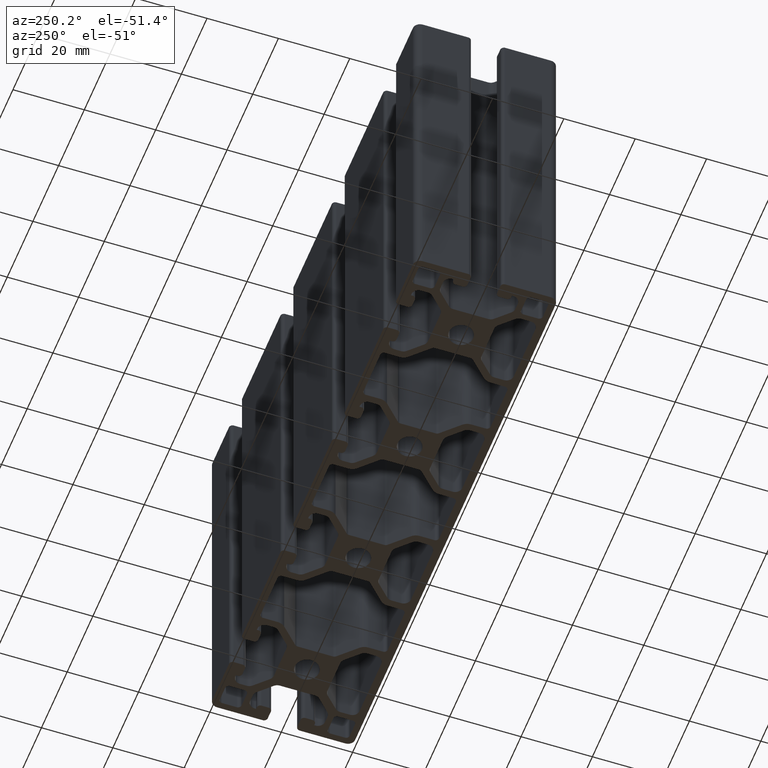
[diagram: clean part render]
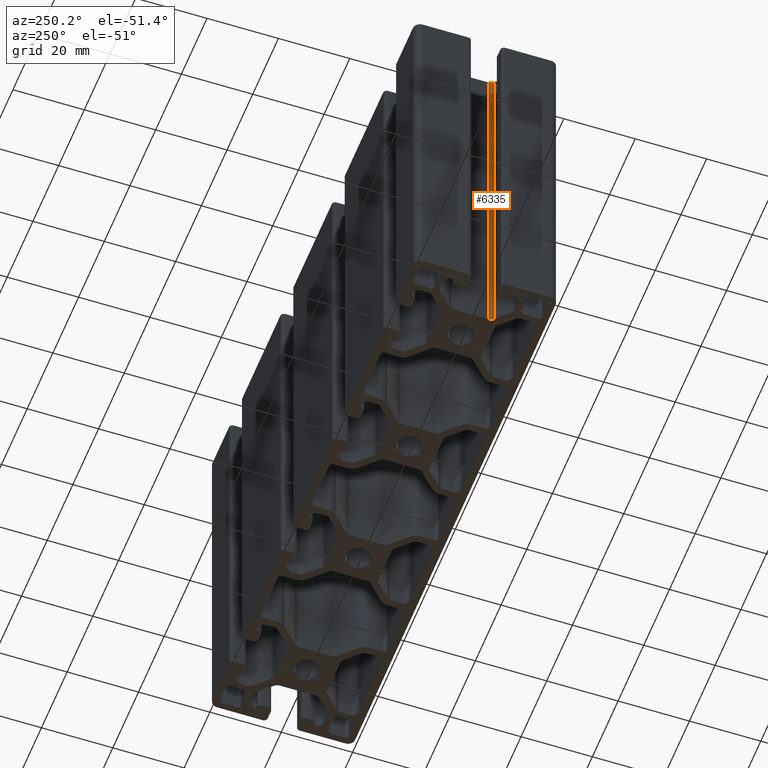
[diagram: same view with one face highlighted and labeled with its STEP entity id]
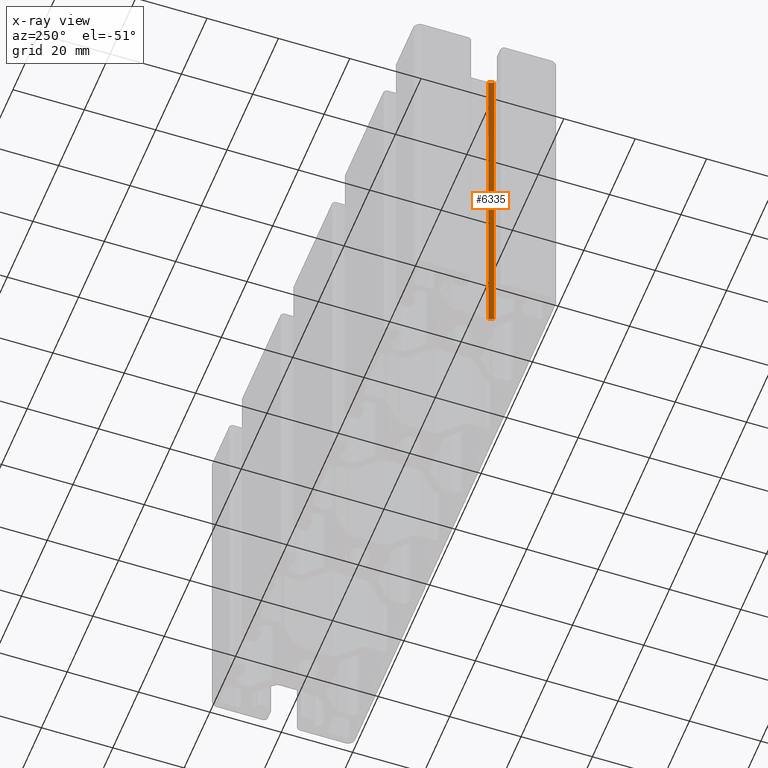
[diagram: x-ray of the same camera — body ghosted, the highlighted face saturated]
A machine part, auxiliary view. The second image highlights one B-rep face of the part: STEP entity #6335.
The next image is the same camera in x-ray: the body ghosted, the highlighted face saturated — about 0% of this face is hidden behind the body in this view.
In plain terms, the highlighted cylindrical surface (edge-blend (fillet) strip) has radius 2 mm, axis along (0, 0, 1).
Its self-contained STEP definition (entity closure, byte-faithful):
#393=FACE_OUTER_BOUND('',#719,.T.);
#719=EDGE_LOOP('',(#4793,#4794,#4795,#4796));
#1243=LINE('',#10096,#1887);
#1244=LINE('',#10102,#1888);
#1887=VECTOR('',#8183,100.);
#1888=VECTOR('',#8190,100.);
#2361=CIRCLE('',#6840,2.);
#2362=CIRCLE('',#6841,2.);
#2849=VERTEX_POINT('',#10092);
#2850=VERTEX_POINT('',#10094);
#2851=VERTEX_POINT('',#10098);
#2852=VERTEX_POINT('',#10100);
#3663=EDGE_CURVE('',#2849,#2850,#1243,.T.);
#3664=EDGE_CURVE('',#2851,#2849,#2361,.T.);
#3665=EDGE_CURVE('',#2852,#2850,#2362,.T.);
#3666=EDGE_CURVE('',#2851,#2852,#1244,.T.);
#4793=ORIENTED_EDGE('',*,*,#3664,.T.);
#4794=ORIENTED_EDGE('',*,*,#3663,.T.);
#4795=ORIENTED_EDGE('',*,*,#3665,.F.);
#4796=ORIENTED_EDGE('',*,*,#3666,.F.);
#6091=CYLINDRICAL_SURFACE('',#6839,2.);
#6335=ADVANCED_FACE('',(#393),#6091,.F.);
#6839=AXIS2_PLACEMENT_3D('',#10097,#8184,#8185);
#6840=AXIS2_PLACEMENT_3D('',#10099,#8186,#8187);
#6841=AXIS2_PLACEMENT_3D('',#10101,#8188,#8189);
#8183=DIRECTION('',(0.,0.,1.));
#8184=DIRECTION('center_axis',(0.,0.,1.));
#8185=DIRECTION('ref_axis',(-0.707106781186548,0.707106781186547,0.));
#8186=DIRECTION('center_axis',(0.,0.,-1.));
#8187=DIRECTION('ref_axis',(-0.707106781186548,0.707106781186547,0.));
#8188=DIRECTION('center_axis',(0.,0.,-1.));
#8189=DIRECTION('ref_axis',(-0.707106781186548,0.707106781186547,0.));
#8190=DIRECTION('',(0.,0.,1.));
#10092=CARTESIAN_POINT('',(-68.0857864376269,-6.3362135623731,0.));
#10094=CARTESIAN_POINT('',(-68.0857864376269,-6.3362135623731,100.));
#10096=CARTESIAN_POINT('',(-68.0857864376269,-6.3362135623731,0.));
#10097=CARTESIAN_POINT('Origin',(-69.5,-4.922,0.));
#10098=CARTESIAN_POINT('',(-67.5,-4.922,0.));
#10099=CARTESIAN_POINT('Origin',(-69.5,-4.922,0.));
#10100=CARTESIAN_POINT('',(-67.5,-4.922,100.));
#10101=CARTESIAN_POINT('Origin',(-69.5,-4.922,100.));
#10102=CARTESIAN_POINT('',(-67.5,-4.922,0.));